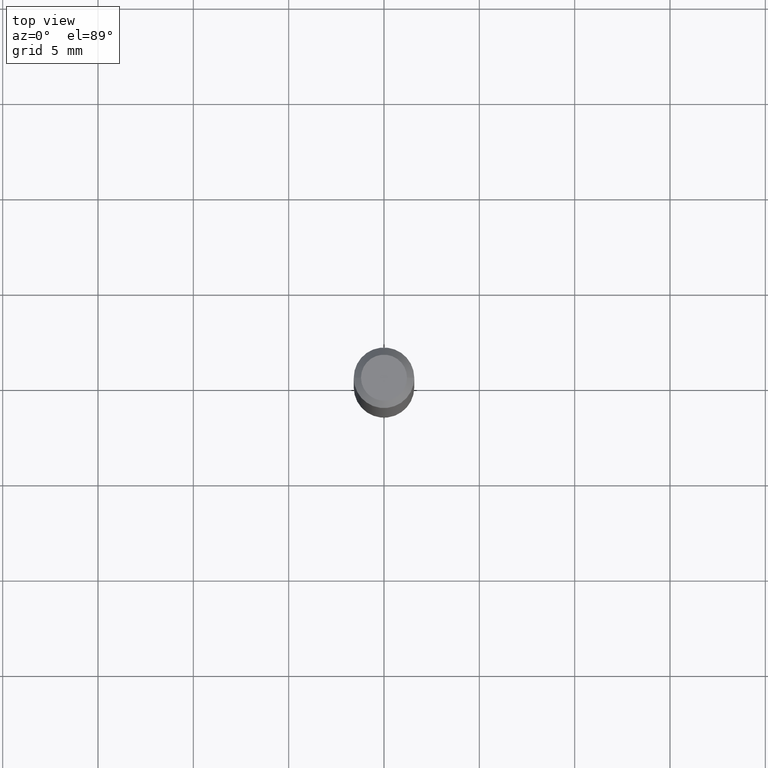
[diagram: clean part render]
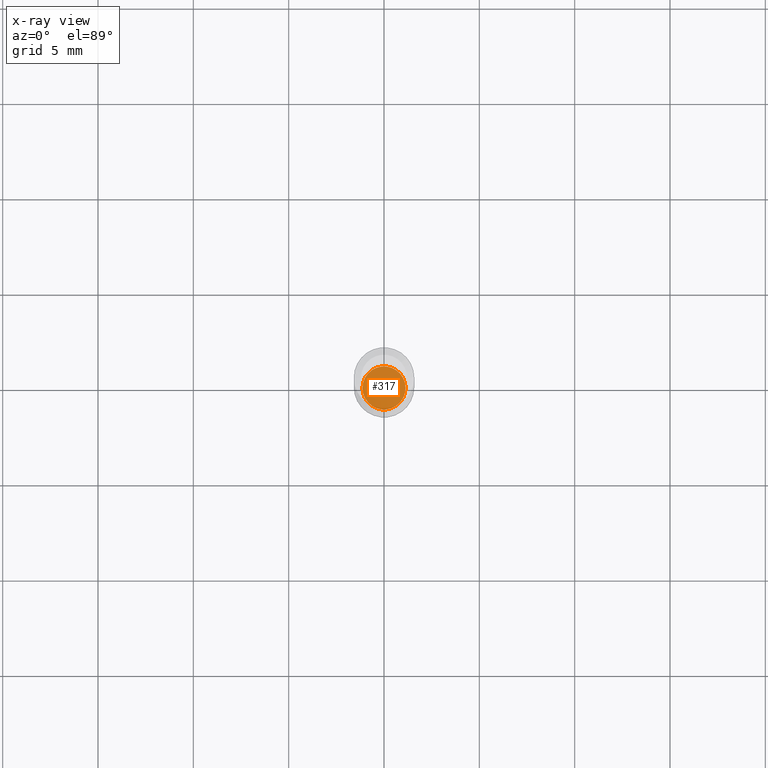
[diagram: x-ray — body ghosted, one internal face saturated and labeled with its STEP entity id]
A machine part, top view, then the same camera in x-ray: the body is ghosted and one INTERNAL B-rep face — a face not visible from any outside direction — is saturated and labeled: STEP entity #317.
In plain terms, the highlighted planar face has unit normal (-0, 0, 1).
Its self-contained STEP definition (entity closure, byte-faithful):
#9 = CARTESIAN_POINT ( 'NONE',  ( -0.04449999999999997014, -3.975681302189714292E-15, -1.230000000000000204 ) ) ;
#24 = VERTEX_POINT ( 'NONE', #282 ) ;
#34 = VERTEX_POINT ( 'NONE', #9 ) ;
#47 = DIRECTION ( 'NONE',  ( 1.000000000000000000, -6.982962677686265922E-15, 4.876176775795935793E-29 ) ) ;
#75 = AXIS2_PLACEMENT_3D ( 'NONE', #361, #208, #47 ) ;
#110 = AXIS2_PLACEMENT_3D ( 'NONE', #149, #352, #517 ) ;
#124 = EDGE_CURVE ( 'NONE', #24, #34, #473, .T. ) ;
#149 = CARTESIAN_POINT ( 'NONE',  ( 3.007926631607718216E-29, -4.294522046777069173E-15, -1.230000000000000204 ) ) ;
#160 = ORIENTED_EDGE ( 'NONE', *, *, #124, .F. ) ;
#166 = EDGE_CURVE ( 'NONE', #34, #24, #339, .T. ) ;
#208 = DIRECTION ( 'NONE',  ( -2.438088387897960049E-29, 3.491481338843145188E-15, 1.000000000000000000 ) ) ;
#218 = EDGE_LOOP ( 'NONE', ( #160, #462 ) ) ;
#282 = CARTESIAN_POINT ( 'NONE',  ( 0.04449999999999997014, -4.605263885934107852E-15, -1.230000000000000204 ) ) ;
#317 = ADVANCED_FACE ( 'NONE', ( #436 ), #320, .F. ) ;
#320 = PLANE ( 'NONE',  #75 ) ;
#339 = CIRCLE ( 'NONE', #345, 0.04449999999999997014 ) ;
#345 = AXIS2_PLACEMENT_3D ( 'NONE', #386, #507, #481 ) ;
#352 = DIRECTION ( 'NONE',  ( -2.445468806185136597E-29, 3.491481338843145583E-15, 1.000000000000000000 ) ) ;
#361 = CARTESIAN_POINT ( 'NONE',  ( 3.007926631607718216E-29, -4.294522046777069173E-15, -1.230000000000000204 ) ) ;
#386 = CARTESIAN_POINT ( 'NONE',  ( 3.007926631607718216E-29, -4.294522046777069173E-15, -1.230000000000000204 ) ) ;
#436 = FACE_OUTER_BOUND ( 'NONE', #218, .T. ) ;
#462 = ORIENTED_EDGE ( 'NONE', *, *, #166, .F. ) ;
#473 = CIRCLE ( 'NONE', #110, 0.04449999999999997014 ) ;
#481 = DIRECTION ( 'NONE',  ( 1.000000000000000000, -6.982962677686261977E-15, 0.000000000000000000 ) ) ;
#507 = DIRECTION ( 'NONE',  ( -2.445468806185136597E-29, 3.491481338843145583E-15, 1.000000000000000000 ) ) ;
#517 = DIRECTION ( 'NONE',  ( 1.000000000000000000, -6.982962677686261977E-15, 0.000000000000000000 ) ) ;